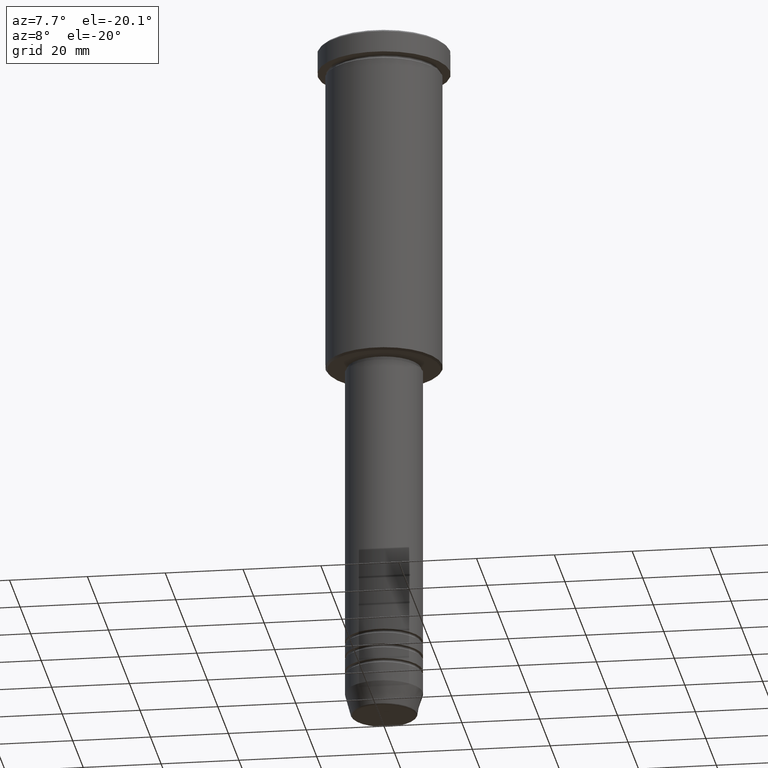
[diagram: clean part render]
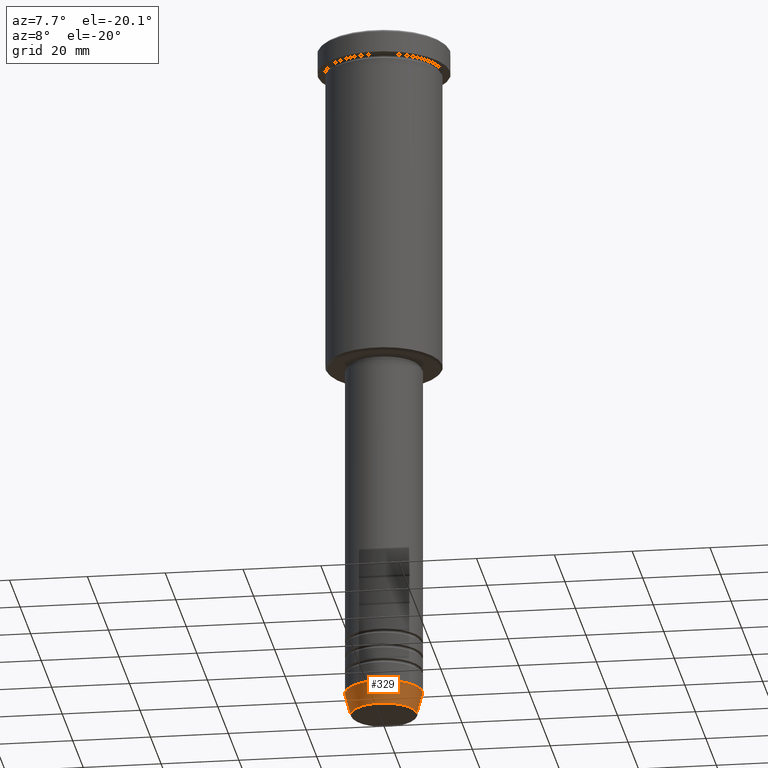
[diagram: same view with one face highlighted and labeled with its STEP entity id]
A machine part, auxiliary view. The second image highlights one B-rep face of the part: STEP entity #329.
In plain terms, the highlighted conical surface has half-angle 15 deg.
Its self-contained STEP definition (entity closure, byte-faithful):
#6 = DIRECTION ( 'NONE',  ( -0.000000000000000000, -0.000000000000000000, 1.000000000000000000 ) ) ;
#20 = FACE_OUTER_BOUND ( 'NONE', #1151, .T. ) ;
#48 = EDGE_CURVE ( 'NONE', #217, #309, #1178, .T. ) ;
#162 = EDGE_CURVE ( 'NONE', #461, #217, #256, .T. ) ;
#170 = CARTESIAN_POINT ( 'NONE',  ( -10.00000000000000178, 1.224646799147353454E-15, -174.0000000000000284 ) ) ;
#175 = EDGE_CURVE ( 'NONE', #1083, #309, #1167, .T. ) ;
#190 = CARTESIAN_POINT ( 'NONE',  ( 0.000000000000000000, 0.000000000000000000, -179.6294095225512422 ) ) ;
#206 = ORIENTED_EDGE ( 'NONE', *, *, #175, .T. ) ;
#217 = VERTEX_POINT ( 'NONE', #170 ) ;
#256 = LINE ( 'NONE', #1170, #1103 ) ;
#309 = VERTEX_POINT ( 'NONE', #364 ) ;
#329 = ADVANCED_FACE ( 'NONE', ( #20 ), #436, .T. ) ;
#358 = ORIENTED_EDGE ( 'NONE', *, *, #162, .F. ) ;
#364 = CARTESIAN_POINT ( 'NONE',  ( 10.00000000000000178, 0.000000000000000000, -174.0000000000000284 ) ) ;
#404 = CIRCLE ( 'NONE', #1053, 8.491604264568326954 ) ;
#415 = ORIENTED_EDGE ( 'NONE', *, *, #808, .T. ) ;
#436 = CONICAL_SURFACE ( 'NONE', #571, 10.00000000000000178, 0.2617993877991501850 ) ;
#439 = DIRECTION ( 'NONE',  ( -0.2588190451025214611, 3.169619151431773569E-17, 0.9659258262890680902 ) ) ;
#461 = VERTEX_POINT ( 'NONE', #1031 ) ;
#496 = VECTOR ( 'NONE', #803, 1000.000000000000000 ) ;
#562 = CARTESIAN_POINT ( 'NONE',  ( 0.000000000000000000, 0.000000000000000000, -174.0000000000000284 ) ) ;
#571 = AXIS2_PLACEMENT_3D ( 'NONE', #726, #1011, #1095 ) ;
#643 = DIRECTION ( 'NONE',  ( 1.000000000000000000, 0.000000000000000000, 0.000000000000000000 ) ) ;
#725 = DIRECTION ( 'NONE',  ( 1.000000000000000000, 0.000000000000000000, 0.000000000000000000 ) ) ;
#726 = CARTESIAN_POINT ( 'NONE',  ( 0.000000000000000000, 0.000000000000000000, -174.0000000000000284 ) ) ;
#803 = DIRECTION ( 'NONE',  ( 0.2588190451025214611, 0.000000000000000000, 0.9659258262890680902 ) ) ;
#808 = EDGE_CURVE ( 'NONE', #461, #1083, #404, .T. ) ;
#832 = ORIENTED_EDGE ( 'NONE', *, *, #48, .F. ) ;
#900 = CARTESIAN_POINT ( 'NONE',  ( 10.00000000000000178, 0.000000000000000000, -174.0000000000000284 ) ) ;
#955 = AXIS2_PLACEMENT_3D ( 'NONE', #562, #6, #643 ) ;
#968 = CARTESIAN_POINT ( 'NONE',  ( 8.491604264568326954, 0.000000000000000000, -179.6294095225512422 ) ) ;
#1011 = DIRECTION ( 'NONE',  ( -0.000000000000000000, -0.000000000000000000, 1.000000000000000000 ) ) ;
#1031 = CARTESIAN_POINT ( 'NONE',  ( -8.491604264568326954, 1.132284198685157767E-15, -179.6294095225512422 ) ) ;
#1053 = AXIS2_PLACEMENT_3D ( 'NONE', #190, #1174, #725 ) ;
#1083 = VERTEX_POINT ( 'NONE', #968 ) ;
#1095 = DIRECTION ( 'NONE',  ( 1.000000000000000000, 0.000000000000000000, 0.000000000000000000 ) ) ;
#1103 = VECTOR ( 'NONE', #439, 1000.000000000000000 ) ;
#1151 = EDGE_LOOP ( 'NONE', ( #358, #415, #206, #832 ) ) ;
#1167 = LINE ( 'NONE', #900, #496 ) ;
#1170 = CARTESIAN_POINT ( 'NONE',  ( -10.00000000000000178, 1.224646799147353454E-15, -174.0000000000000284 ) ) ;
#1174 = DIRECTION ( 'NONE',  ( -0.000000000000000000, -0.000000000000000000, 1.000000000000000000 ) ) ;
#1178 = CIRCLE ( 'NONE', #955, 10.00000000000000178 ) ;